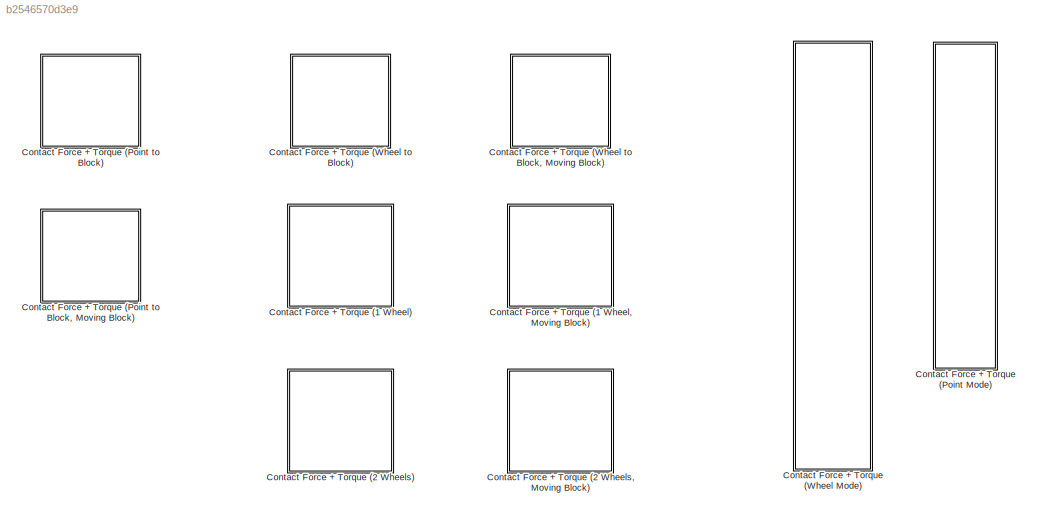
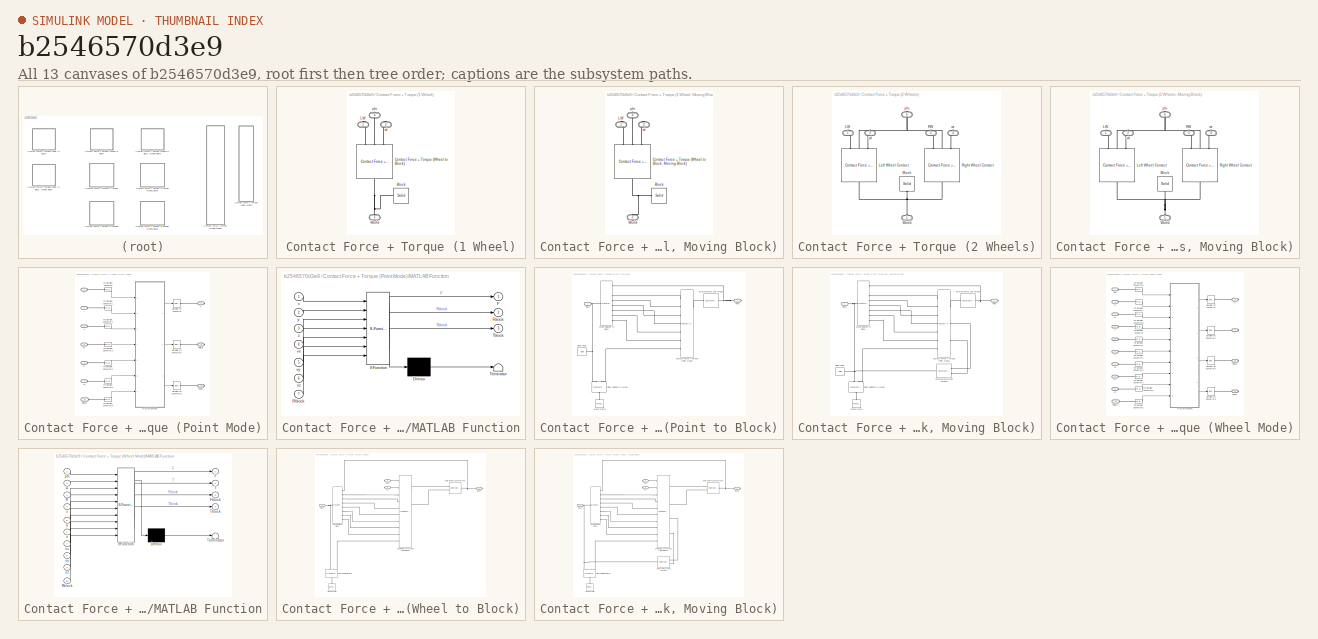
[diagram: thumbnail index - all 13 canvases of the model, root first then tree order]
MODEL slx_b2546570d3e9
KIND library
BLOCK [SubSystem] Contact Force + Torque (1 Wheel)
  Ports = [0, 0, 0, 0, 0, 1, 3]
  RequestExecContextInheritance = off
BLOCK [Reference] Contact Force + Torque (1 Wheel)/Block  REF=sm_lib/Body Elements/Solid
  BlockFunction = simmechanics.library.body_elements.solid
  BrickDimensionUnits = m
  BrickDimensions = [xBlock yBlock zBlock]
  CenterOfMass = [0 0 0]
  CenterOfMassUnits = m
  ClassName = Solid
  CylinderLength = 1
  CylinderLengthUnits = m
  CylinderRadius = 1
  CylinderRadiusUnits = m
  Density = 1000
  DensityBased = off
  DensityUnits = kg/(m^3)
  EllipsoidRadii = [1 1 1]
  EllipsoidRadiiUnits = m
  ExtGeomFileType = STL
  ExtGeomFileUnits = m
  ExtrusionCrossSection = [1 1; -1 1; -1 -1; 1 -1]
  ExtrusionCrossSectionUnits = m
  ExtrusionLength = 1
  ExtrusionLengthUnits = m
  GeometryShape = Brick
  GraphicAmbientColor = [0.15 0.15 0.15 1.0]
  GraphicDiffuseColor = blockColor
  GraphicEmissiveColor = [0.0 0.0 0.0 1.0]
  GraphicOpacity = 1.0
  GraphicShininess = 75
  GraphicSpecularColor = [0.5 0.5 0.5 1.0]
  GraphicType = FromGeometry
  GraphicVisPropType = SimpleVisualProperties
  InertiaType = CalculateFromGeometry
  MarkerShape = Sphere
  MarkerSize = 10
  MarkerSizeUnits = m
  Mass = mBlock
  MassUnits = kg
  MomentsOfInertia = [1 1 1]
  MomentsOfInertiaUnits = kg*m^2
  PolygonNumSides = 3
  PolygonOuterRadius = 1
  PolygonOuterRadiusUnits = m
  Ports = [0, 0, 0, 0, 0, 0, 1]
  ProductsOfInertia = [0 0 0]
  ProductsOfInertiaUnits = kg*m^2
  RectangleSize = [1 1]
  RectangleSizeUnits = m
  RevolutionAngle = 180
  RevolutionAngleUnits = deg
  RevolutionCrossSection = [1 1; 1 -1; 2 -1; 2 1]
  RevolutionCrossSectionUnits = m
  RevolutionExtent = Full
  SourceBlock = sm_lib/Body Elements/Solid
  SourceType = Solid
  SphereRadius = 1
  SphereRadiusUnits = m
BLOCK [Reference] Contact Force + Torque (1 Wheel)/Contact Force + Torque (Wheel to Block)  REF=contactlibV2/Contact Force + Torque
(Wheel to Block)
  Ports = [0, 0, 0, 0, 0, 1, 3]
  SourceBlock = contactlibV2/Contact Force + Torque\n(Wheel to Block)
  b = b
  b2 = b2
  blockColor = blockColor
  k = k
  mBlock = mBlock
  rWheel = rWheel
  xBlock = xBlock
  yBlock = yBlock
  zBlock = zBlock
BLOCK [PMIOPort] Contact Force + Torque (1 Wheel)/LW
  Port = 1
  Side = Right
BLOCK [PMIOPort] Contact Force + Torque (1 Wheel)/World
  Port = 3
  Side = Left
BLOCK [PMIOPort] Contact Force + Torque (1 Wheel)/phi
  Port = 4
  Side = Right
BLOCK [PMIOPort] Contact Force + Torque (1 Wheel)/wl
  Port = 2
  Side = Right
BLOCK [SubSystem] Contact Force + Torque (1 Wheel, Moving Block)
  Ports = [0, 0, 0, 0, 0, 1, 3]
  RequestExecContextInheritance = off
BLOCK [Reference] Contact Force + Torque (1 Wheel, Moving Block)/Block  REF=sm_lib/Body Elements/Solid
  BlockFunction = simmechanics.library.body_elements.solid
  BrickDimensionUnits = m
  BrickDimensions = [xBlock yBlock zBlock]
  CenterOfMass = [0 0 0]
  CenterOfMassUnits = m
  ClassName = Solid
  CylinderLength = 1
  CylinderLengthUnits = m
  CylinderRadius = 1
  CylinderRadiusUnits = m
  Density = 1000
  DensityBased = off
  DensityUnits = kg/(m^3)
  EllipsoidRadii = [1 1 1]
  EllipsoidRadiiUnits = m
  ExtGeomFileType = STL
  ExtGeomFileUnits = m
  ExtrusionCrossSection = [1 1; -1 1; -1 -1; 1 -1]
  ExtrusionCrossSectionUnits = m
  ExtrusionLength = 1
  ExtrusionLengthUnits = m
  GeometryShape = Brick
  GraphicAmbientColor = [0.15 0.15 0.15 1.0]
  GraphicDiffuseColor = blockColor
  GraphicEmissiveColor = [0.0 0.0 0.0 1.0]
  GraphicOpacity = 1.0
  GraphicShininess = 75
  GraphicSpecularColor = [0.5 0.5 0.5 1.0]
  GraphicType = FromGeometry
  GraphicVisPropType = SimpleVisualProperties
  InertiaType = CalculateFromGeometry
  MarkerShape = Sphere
  MarkerSize = 10
  MarkerSizeUnits = m
  Mass = mBlock
  MassUnits = kg
  MomentsOfInertia = [1 1 1]
  MomentsOfInertiaUnits = kg*m^2
  PolygonNumSides = 3
  PolygonOuterRadius = 1
  PolygonOuterRadiusUnits = m
  Ports = [0, 0, 0, 0, 0, 0, 1]
  ProductsOfInertia = [0 0 0]
  ProductsOfInertiaUnits = kg*m^2
  RectangleSize = [1 1]
  RectangleSizeUnits = m
  RevolutionAngle = 180
  RevolutionAngleUnits = deg
  RevolutionCrossSection = [1 1; 1 -1; 2 -1; 2 1]
  RevolutionCrossSectionUnits = m
  RevolutionExtent = Full
  SourceBlock = sm_lib/Body Elements/Solid
  SourceType = Solid
  SphereRadius = 1
  SphereRadiusUnits = m
BLOCK [Reference] Contact Force + Torque (1 Wheel, Moving Block)/Contact Force + Torque (Wheel to Block, Moving Block)  REF=contactlibV2/Contact Force + Torque
(Wheel to Block, Moving Block)
  Ports = [0, 0, 0, 0, 0, 1, 3]
  SourceBlock = contactlibV2/Contact Force + Torque\n(Wheel to Block, Moving Block)
  b = b
  b2 = b2
  blockColor = blockColor
  k = k
  mBlock = mBlock
  rWheel = rWheel
  xBlock = xBlock
  yBlock = yBlock
  zBlock = zBlock
BLOCK [PMIOPort] Contact Force + Torque (1 Wheel, Moving Block)/LW
  Port = 1
  Side = Right
BLOCK [PMIOPort] Contact Force + Torque (1 Wheel, Moving Block)/World
  Port = 3
  Side = Left
BLOCK [PMIOPort] Contact Force + Torque (1 Wheel, Moving Block)/phi
  Port = 4
  Side = Right
BLOCK [PMIOPort] Contact Force + Torque (1 Wheel, Moving Block)/wl
  Port = 2
  Side = Right
BLOCK [SubSystem] Contact Force + Torque (2 Wheels)
  Ports = [0, 0, 0, 0, 0, 1, 5]
  RequestExecContextInheritance = off
BLOCK [Reference] Contact Force + Torque (2 Wheels)/Block  REF=sm_lib/Body Elements/Solid
  BlockFunction = simmechanics.library.body_elements.solid
  BrickDimensionUnits = m
  BrickDimensions = [xBlock yBlock zBlock]
  CenterOfMass = [0 0 0]
  CenterOfMassUnits = m
  ClassName = Solid
  CylinderLength = 1
  CylinderLengthUnits = m
  CylinderRadius = 1
  CylinderRadiusUnits = m
  Density = 1000
  DensityBased = off
  DensityUnits = kg/(m^3)
  EllipsoidRadii = [1 1 1]
  EllipsoidRadiiUnits = m
  ExtGeomFileType = STL
  ExtGeomFileUnits = m
  ExtrusionCrossSection = [1 1; -1 1; -1 -1; 1 -1]
  ExtrusionCrossSectionUnits = m
  ExtrusionLength = 1
  ExtrusionLengthUnits = m
  GeometryShape = Brick
  GraphicAmbientColor = [0.15 0.15 0.15 1.0]
  GraphicDiffuseColor = blockColor
  GraphicEmissiveColor = [0.0 0.0 0.0 1.0]
  GraphicOpacity = 1.0
  GraphicShininess = 75
  GraphicSpecularColor = [0.5 0.5 0.5 1.0]
  GraphicType = FromGeometry
  GraphicVisPropType = SimpleVisualProperties
  InertiaType = CalculateFromGeometry
  MarkerShape = Sphere
  MarkerSize = 10
  MarkerSizeUnits = m
  Mass = mBlock
  MassUnits = kg
  MomentsOfInertia = [1 1 1]
  MomentsOfInertiaUnits = kg*m^2
  PolygonNumSides = 3
  PolygonOuterRadius = 1
  PolygonOuterRadiusUnits = m
  Ports = [0, 0, 0, 0, 0, 0, 1]
  ProductsOfInertia = [0 0 0]
  ProductsOfInertiaUnits = kg*m^2
  RectangleSize = [1 1]
  RectangleSizeUnits = m
  RevolutionAngle = 180
  RevolutionAngleUnits = deg
  RevolutionCrossSection = [1 1; 1 -1; 2 -1; 2 1]
  RevolutionCrossSectionUnits = m
  RevolutionExtent = Full
  SourceBlock = sm_lib/Body Elements/Solid
  SourceType = Solid
  SphereRadius = 1
  SphereRadiusUnits = m
BLOCK [PMIOPort] Contact Force + Torque (2 Wheels)/LW
  Port = 1
  Side = Right
BLOCK [Reference] Contact Force + Torque (2 Wheels)/Left Wheel Contact  REF=contactlibV2/Contact Force + Torque
(Wheel to Block)
  Ports = [0, 0, 0, 0, 0, 1, 3]
  SourceBlock = contactlibV2/Contact Force + Torque\n(Wheel to Block)
  b = b
  b2 = b2
  blockColor = blockColor
  k = k
  mBlock = mBlock
  rWheel = rWheel
  xBlock = xBlock
  yBlock = yBlock
  zBlock = zBlock
BLOCK [PMIOPort] Contact Force + Torque (2 Wheels)/RW
  Port = 3
  Side = Right
BLOCK [Reference] Contact Force + Torque (2 Wheels)/Right Wheel Contact  REF=contactlibV2/Contact Force + Torque
(Wheel to Block)
  Ports = [0, 0, 0, 0, 0, 1, 3]
  SourceBlock = contactlibV2/Contact Force + Torque\n(Wheel to Block)
  b = b
  b2 = b2
  blockColor = blockColor
  k = k
  mBlock = mBlock
  rWheel = rWheel
  xBlock = xBlock
  yBlock = yBlock
  zBlock = zBlock
BLOCK [PMIOPort] Contact Force + Torque (2 Wheels)/World
  Port = 5
  Side = Left
BLOCK [PMIOPort] Contact Force + Torque (2 Wheels)/phi
  Port = 6
  Side = Right
BLOCK [PMIOPort] Contact Force + Torque (2 Wheels)/wl
  Port = 2
  Side = Right
BLOCK [PMIOPort] Contact Force + Torque (2 Wheels)/wr
  Port = 4
  Side = Right
BLOCK [SubSystem] Contact Force + Torque (2 Wheels, Moving Block)
  Ports = [0, 0, 0, 0, 0, 1, 5]
  RequestExecContextInheritance = off
BLOCK [Reference] Contact Force + Torque (2 Wheels, Moving Block)/Block  REF=sm_lib/Body Elements/Solid
  BlockFunction = simmechanics.library.body_elements.solid
  BrickDimensionUnits = m
  BrickDimensions = [xBlock yBlock zBlock]
  CenterOfMass = [0 0 0]
  CenterOfMassUnits = m
  ClassName = Solid
  CylinderLength = 1
  CylinderLengthUnits = m
  CylinderRadius = 1
  CylinderRadiusUnits = m
  Density = 1000
  DensityBased = off
  DensityUnits = kg/(m^3)
  EllipsoidRadii = [1 1 1]
  EllipsoidRadiiUnits = m
  ExtGeomFileType = STL
  ExtGeomFileUnits = m
  ExtrusionCrossSection = [1 1; -1 1; -1 -1; 1 -1]
  ExtrusionCrossSectionUnits = m
  ExtrusionLength = 1
  ExtrusionLengthUnits = m
  GeometryShape = Brick
  GraphicAmbientColor = [0.15 0.15 0.15 1.0]
  GraphicDiffuseColor = blockColor
  GraphicEmissiveColor = [0.0 0.0 0.0 1.0]
  GraphicOpacity = 1.0
  GraphicShininess = 75
  GraphicSpecularColor = [0.5 0.5 0.5 1.0]
  GraphicType = FromGeometry
  GraphicVisPropType = SimpleVisualProperties
  InertiaType = CalculateFromGeometry
  MarkerShape = Sphere
  MarkerSize = 10
  MarkerSizeUnits = m
  Mass = mBlock
  MassUnits = kg
  MomentsOfInertia = [1 1 1]
  MomentsOfInertiaUnits = kg*m^2
  PolygonNumSides = 3
  PolygonOuterRadius = 1
  PolygonOuterRadiusUnits = m
  Ports = [0, 0, 0, 0, 0, 0, 1]
  ProductsOfInertia = [0 0 0]
  ProductsOfInertiaUnits = kg*m^2
  RectangleSize = [1 1]
  RectangleSizeUnits = m
  RevolutionAngle = 180
  RevolutionAngleUnits = deg
  RevolutionCrossSection = [1 1; 1 -1; 2 -1; 2 1]
  RevolutionCrossSectionUnits = m
  RevolutionExtent = Full
  SourceBlock = sm_lib/Body Elements/Solid
  SourceType = Solid
  SphereRadius = 1
  SphereRadiusUnits = m
BLOCK [PMIOPort] Contact Force + Torque (2 Wheels, Moving Block)/LW
  Port = 1
  Side = Right
BLOCK [Reference] Contact Force + Torque (2 Wheels, Moving Block)/Left Wheel Contact  REF=contactlibV2/Contact Force + Torque
(Wheel to Block, Moving Block)
  Ports = [0, 0, 0, 0, 0, 1, 3]
  SourceBlock = contactlibV2/Contact Force + Torque\n(Wheel to Block, Moving Block)
  b = b
  b2 = b2
  blockColor = blockColor
  k = k
  mBlock = mBlock
  rWheel = rWheel
  xBlock = xBlock
  yBlock = yBlock
  zBlock = zBlock
BLOCK [PMIOPort] Contact Force + Torque (2 Wheels, Moving Block)/RW
  Port = 3
  Side = Right
BLOCK [Reference] Contact Force + Torque (2 Wheels, Moving Block)/Right Wheel Contact  REF=contactlibV2/Contact Force + Torque
(Wheel to Block, Moving Block)
  Ports = [0, 0, 0, 0, 0, 1, 3]
  SourceBlock = contactlibV2/Contact Force + Torque\n(Wheel to Block, Moving Block)
  b = b
  b2 = b2
  blockColor = blockColor
  k = k
  mBlock = mBlock
  rWheel = rWheel
  xBlock = xBlock
  yBlock = yBlock
  zBlock = zBlock
BLOCK [PMIOPort] Contact Force + Torque (2 Wheels, Moving Block)/World
  Port = 5
  Side = Left
BLOCK [PMIOPort] Contact Force + Torque (2 Wheels, Moving Block)/phi
  Port = 6
  Side = Right
BLOCK [PMIOPort] Contact Force + Torque (2 Wheels, Moving Block)/wl
  Port = 2
  Side = Right
BLOCK [PMIOPort] Contact Force + Torque (2 Wheels, Moving Block)/wr
  Port = 4
  Side = Right
BLOCK [SubSystem] Contact Force + Torque (Point Mode)
  Ports = [0, 0, 0, 0, 0, 7, 3]
  RequestExecContextInheritance = off
BLOCK [PMIOPort] Contact Force + Torque (Point Mode)/F
  Port = 1
  Side = Right
BLOCK [PMIOPort] Contact Force + Torque (Point Mode)/Fblock
  Port = 9
  Side = Right
BLOCK [SubSystem] Contact Force + Torque (Point Mode)/MATLAB Function
  ErrorFcn = Stateflow.Translate.translate
  PermitHierarchicalResolution = ExplicitOnly
  Ports = [7, 3]
  RequestExecContextInheritance = off
  SFBlockType = MATLAB Function
  TreatAsAtomicUnit = on
BLOCK [Demux] Contact Force + Torque (Point Mode)/MATLAB Function/ Demux 
  Outputs = 1
  Ports = [1, 1]
BLOCK [S-Function] Contact Force + Torque (Point Mode)/MATLAB Function/ SFunction 
  EnableBusSupport = off
  FunctionName = sf_sfun
  Parameters = b,b2,k,xBlock,yBlock,zBlock
  PortCounts = [7 4]
  Ports = [7, 4]
  Tag = Stateflow S-Function contactlibV2 2
BLOCK [Terminator] Contact Force + Torque (Point Mode)/MATLAB Function/ Terminator 
BLOCK [Outport] Contact Force + Torque (Point Mode)/MATLAB Function/F
  IconDisplay = Port number
BLOCK [Outport] Contact Force + Torque (Point Mode)/MATLAB Function/Fblock
  IconDisplay = Port number
  Port = 2
BLOCK [Inport] Contact Force + Torque (Point Mode)/MATLAB Function/Rblock
  IconDisplay = Port number
  Port = 7
BLOCK [Outport] Contact Force + Torque (Point Mode)/MATLAB Function/Tblock
  IconDisplay = Port number
  Port = 3
BLOCK [Inport] Contact Force + Torque (Point Mode)/MATLAB Function/vx
  IconDisplay = Port number
  Port = 4
BLOCK [Inport] Contact Force + Torque (Point Mode)/MATLAB Function/vy
  IconDisplay = Port number
  Port = 5
BLOCK [Inport] Contact Force + Torque (Point Mode)/MATLAB Function/vz
  IconDisplay = Port number
  Port = 6
BLOCK [Inport] Contact Force + Torque (Point Mode)/MATLAB Function/x
  IconDisplay = Port number
BLOCK [Inport] Contact Force + Torque (Point Mode)/MATLAB Function/y
  IconDisplay = Port number
  Port = 2
BLOCK [Inport] Contact Force + Torque (Point Mode)/MATLAB Function/z
  IconDisplay = Port number
  Port = 3
BLOCK [Reference] Contact Force + Torque (Point Mode)/PS-Simulink Converter  REF=nesl_utility/PS-Simulink
Converter
  AffineConversion = off
  Frequencies = []
  LeftPortType = input
  PhysicalDomain = network_engine_domain
  Ports = [0, 1, 0, 0, 0, 1]
  PseudoPeriodic = off
  RightPortType = output
  SourceBlock = nesl_utility/PS-Simulink\nConverter
  SourceType = PS-Simulink\nConverter
  SubClassName = ps_output
  Unit = 1
BLOCK [Reference] Contact Force + Torque (Point Mode)/PS-Simulink Converter1  REF=nesl_utility/PS-Simulink
Converter
  AffineConversion = off
  Frequencies = []
  LeftPortType = input
  PhysicalDomain = network_engine_domain
  Ports = [0, 1, 0, 0, 0, 1]
  PseudoPeriodic = off
  RightPortType = output
  SourceBlock = nesl_utility/PS-Simulink\nConverter
  SourceType = PS-Simulink\nConverter
  SubClassName = ps_output
  Unit = 1
BLOCK [Reference] Contact Force + Torque (Point Mode)/PS-Simulink Converter2  REF=nesl_utility/PS-Simulink
Converter
  AffineConversion = off
  Frequencies = []
  LeftPortType = input
  PhysicalDomain = network_engine_domain
  Ports = [0, 1, 0, 0, 0, 1]
  PseudoPeriodic = off
  RightPortType = output
  SourceBlock = nesl_utility/PS-Simulink\nConverter
  SourceType = PS-Simulink\nConverter
  SubClassName = ps_output
  Unit = 1
BLOCK [Reference] Contact Force + Torque (Point Mode)/PS-Simulink Converter3  REF=nesl_utility/PS-Simulink
Converter
  AffineConversion = off
  Frequencies = []
  LeftPortType = input
  PhysicalDomain = network_engine_domain
  Ports = [0, 1, 0, 0, 0, 1]
  PseudoPeriodic = off
  RightPortType = output
  SourceBlock = nesl_utility/PS-Simulink\nConverter
  SourceType = PS-Simulink\nConverter
  SubClassName = ps_output
  Unit = 1
BLOCK [Reference] Contact Force + Torque (Point Mode)/PS-Simulink Converter4  REF=nesl_utility/PS-Simulink
Converter
  AffineConversion = off
  Frequencies = []
  LeftPortType = input
  PhysicalDomain = network_engine_domain
  Ports = [0, 1, 0, 0, 0, 1]
  PseudoPeriodic = off
  RightPortType = output
  SourceBlock = nesl_utility/PS-Simulink\nConverter
  SourceType = PS-Simulink\nConverter
  SubClassName = ps_output
  Unit = 1
BLOCK [Reference] Contact Force + Torque (Point Mode)/PS-Simulink Converter5  REF=nesl_utility/PS-Simulink
Converter
  AffineConversion = off
  Frequencies = []
  LeftPortType = input
  PhysicalDomain = network_engine_domain
  Ports = [0, 1, 0, 0, 0, 1]
  PseudoPeriodic = off
  RightPortType = output
  SourceBlock = nesl_utility/PS-Simulink\nConverter
  SourceType = PS-Simulink\nConverter
  SubClassName = ps_output
  Unit = 1
BLOCK [Reference] Contact Force + Torque (Point Mode)/PS-Simulink Converter6  REF=nesl_utility/PS-Simulink
Converter
  AffineConversion = off
  Frequencies = []
  LeftPortType = input
  PhysicalDomain = network_engine_domain
  Ports = [0, 1, 0, 0, 0, 1]
  PseudoPeriodic = off
  RightPortType = output
  SourceBlock = nesl_utility/PS-Simulink\nConverter
  SourceType = PS-Simulink\nConverter
  SubClassName = ps_output
  Unit = 1
BLOCK [PMIOPort] Contact Force + Torque (Point Mode)/Rblock
  Port = 8
  Side = Left
BLOCK [Reference] Contact Force + Torque (Point Mode)/Simulink-PS Converter  REF=nesl_utility/Simulink-PS
Converter
  AffineConversion = off
  Frequencies = []
  InputFilterTimeConstant = 0.001
  InputFiltering = off
  LeftPortType = input
  NoiseDistribution = none
  NoiseParameters = []
  PhysicalDomain = network_engine_domain
  Ports = [1, 0, 0, 0, 0, 0, 1]
  PseudoPeriodic = off
  RightPortType = output
  SimscapeFilterOrder = 1
  SourceBlock = nesl_utility/Simulink-PS\nConverter
  SourceType = Simulink-PS\nConverter
  SubClassName = ps_input
  UdotUserProvided = 1
  Unit = 1
BLOCK [Reference] Contact Force + Torque (Point Mode)/Simulink-PS Converter2  REF=nesl_utility/Simulink-PS
Converter
  AffineConversion = off
  Frequencies = []
  InputFilterTimeConstant = 0.001
  InputFiltering = off
  LeftPortType = input
  NoiseDistribution = none
  NoiseParameters = []
  PhysicalDomain = network_engine_domain
  Ports = [1, 0, 0, 0, 0, 0, 1]
  PseudoPeriodic = off
  RightPortType = output
  SimscapeFilterOrder = 1
  SourceBlock = nesl_utility/Simulink-PS\nConverter
  SourceType = Simulink-PS\nConverter
  SubClassName = ps_input
  UdotUserProvided = 1
  Unit = 1
BLOCK [Reference] Contact Force + Torque (Point Mode)/Simulink-PS Converter3  REF=nesl_utility/Simulink-PS
Converter
  AffineConversion = off
  Frequencies = []
  InputFilterTimeConstant = 0.001
  InputFiltering = off
  LeftPortType = input
  NoiseDistribution = none
  NoiseParameters = []
  PhysicalDomain = network_engine_domain
  Ports = [1, 0, 0, 0, 0, 0, 1]
  PseudoPeriodic = off
  RightPortType = output
  SimscapeFilterOrder = 1
  SourceBlock = nesl_utility/Simulink-PS\nConverter
  SourceType = Simulink-PS\nConverter
  SubClassName = ps_input
  UdotUserProvided = 1
  Unit = 1
BLOCK [PMIOPort] Contact Force + Torque (Point Mode)/Tblock
  Port = 10
  Side = Right
BLOCK [PMIOPort] Contact Force + Torque (Point Mode)/vx
  Port = 5
  Side = Left
BLOCK [PMIOPort] Contact Force + Torque (Point Mode)/vy
  Port = 6
  Side = Left
BLOCK [PMIOPort] Contact Force + Torque (Point Mode)/vz
  Port = 7
  Side = Left
BLOCK [PMIOPort] Contact Force + Torque (Point Mode)/x
  Port = 2
  Side = Left
BLOCK [PMIOPort] Contact Force + Torque (Point Mode)/y
  Port = 3
  Side = Left
BLOCK [PMIOPort] Contact Force + Torque (Point Mode)/z
  Port = 4
  Side = Left
BLOCK [SubSystem] Contact Force + Torque (Point to Block)
  Ports = [0, 0, 0, 0, 0, 1, 1]
  RequestExecContextInheritance = off
BLOCK [PMIOPort] Contact Force + Torque (Point to Block)/Block
  Port = 2
  Side = Left
BLOCK [Reference] Contact Force + Torque (Point to Block)/Block Body  REF=sm_lib/Body Elements/Solid
  BlockFunction = simmechanics.library.body_elements.solid
  BrickDimensionUnits = m
  BrickDimensions = [xBlock yBlock zBlock]
  CenterOfMass = [0 0 0]
  CenterOfMassUnits = m
  ClassName = Solid
  CylinderLength = 1
  CylinderLengthUnits = m
  CylinderRadius = 1
  CylinderRadiusUnits = m
  Density = 1000
  DensityBased = off
  DensityUnits = kg/(m^3)
  EllipsoidRadii = [1 1 1]
  EllipsoidRadiiUnits = m
  ExtGeomFileType = STL
  ExtGeomFileUnits = m
  ExtrusionCrossSection = [1 1; -1 1; -1 -1; 1 -1]
  ExtrusionCrossSectionUnits = m
  ExtrusionLength = 1
  ExtrusionLengthUnits = m
  GeometryShape = Brick
  GraphicAmbientColor = [0.15 0.15 0.15 1.0]
  GraphicDiffuseColor = blockColor
  GraphicEmissiveColor = [0.0 0.0 0.0 1.0]
  GraphicOpacity = 1.0
  GraphicShininess = 75
  GraphicSpecularColor = [0.5 0.5 0.5 1.0]
  GraphicType = FromGeometry
  GraphicVisPropType = SimpleVisualProperties
  InertiaType = CalculateFromGeometry
  MarkerShape = Sphere
  MarkerSize = 10
  MarkerSizeUnits = m
  Mass = mBlock
  MassUnits = kg
  MomentsOfInertia = [1 1 1]
  MomentsOfInertiaUnits = kg*m^2
  PolygonNumSides = 3
  PolygonOuterRadius = 1
  PolygonOuterRadiusUnits = m
  Ports = [0, 0, 0, 0, 0, 0, 1]
  ProductsOfInertia = [0 0 0]
  ProductsOfInertiaUnits = kg*m^2
  RectangleSize = [1 1]
  RectangleSizeUnits = m
  RevolutionAngle = 180
  RevolutionAngleUnits = deg
  RevolutionCrossSection = [1 1; 1 -1; 2 -1; 2 1]
  RevolutionCrossSectionUnits = m
  RevolutionExtent = Full
  SourceBlock = sm_lib/Body Elements/Solid
  SourceType = Solid
  SphereRadius = 1
  SphereRadiusUnits = m
BLOCK [Reference] Contact Force + Torque (Point to Block)/Block Relative to World  REF=sm_lib/Frames and
Transforms/Transform
Sensor
  BlockFunction = simmechanics.library.frames_transforms.transform_sensor
  ClassName = TransformSensor
  MeasurementFrame = Base
  Ports = [0, 0, 0, 0, 0, 1, 2]
  SenseAlpha1 = off
  SenseAlpha2 = off
  SenseAlpha3 = off
  SenseAlphaX = off
  SenseAlphaY = off
  SenseAlphaZ = off
  SenseAngle = off
  SenseAngle1 = off
  SenseAngle2 = off
  SenseAngle3 = off
  SenseAxis = off
  SenseAzim = off
  SenseAzimDDot = off
  SenseAzimDot = off
  SenseDist = off
  SenseDistDDot = off
  SenseDistDot = off
  SenseInc = off
  SenseIncDDot = off
  SenseIncDot = off
  SenseOmega1 = off
  SenseOmega2 = off
  SenseOmega3 = off
  SenseOmegaX = off
  SenseOmegaY = off
  SenseOmegaZ = off
  SenseQ = off
  SenseQDDot = off
  SenseQDot = off
  SenseR = on
  SenseRDDot = off
  SenseRDot = off
  SenseRad = off
  SenseRadDDot = off
  SenseRadDot = off
  SenseX = off
  SenseXDDot = off
  SenseXDot = off
  SenseY = off
  SenseYDDot = off
  SenseYDot = off
  SenseZ = off
  SenseZDDot = off
  SenseZDot = off
  SourceBlock = sm_lib/Frames and\nTransforms/Transform\nSensor
  SourceType = Transform\nSensor
BLOCK [Reference] Contact Force + Torque (Point to Block)/Contact Force + Torque (Point Mode)  REF=contactlibV2/Contact Force + Torque
(Point Mode)
  Ports = [0, 0, 0, 0, 0, 7, 3]
  SourceBlock = contactlibV2/Contact Force + Torque\n(Point Mode)
  SourceType = SubSystem
BLOCK [Reference] Contact Force + Torque (Point to Block)/External Force and Torque  REF=sm_lib/Forces and
Torques/External Force
and Torque
  BlockFunction = simmechanics.library.forces_torques.external_force_torque
  ClassName = ExternalForceTorque
  EnableForce = on
  EnableForceX = off
  EnableForceY = off
  EnableForceZ = off
  EnableTorque = off
  EnableTorqueX = off
  EnableTorqueY = off
  EnableTorqueZ = off
  ForceResolutionFrame = World
  Ports = [0, 0, 0, 0, 0, 1, 1]
  SourceBlock = sm_lib/Forces and\nTorques/External Force\nand Torque
  SourceType = External Force\nand Torque
  TorqueResolutionFrame = World
BLOCK [PMIOPort] Contact Force + Torque (Point to Block)/Point
  Port = 1
  Side = Right
BLOCK [Reference] Contact Force + Torque (Point to Block)/Wheel Relative to Block  REF=sm_lib/Frames and
Transforms/Transform
Sensor
  BlockFunction = simmechanics.library.frames_transforms.transform_sensor
  ClassName = TransformSensor
  MeasurementFrame = Base
  Ports = [0, 0, 0, 0, 0, 1, 8]
  SenseAlpha1 = off
  SenseAlpha2 = off
  SenseAlpha3 = off
  SenseAlphaX = off
  SenseAlphaY = off
  SenseAlphaZ = off
  SenseAngle = off
  SenseAngle1 = off
  SenseAngle2 = off
  SenseAngle3 = off
  SenseAxis = off
  SenseAzim = off
  SenseAzimDDot = off
  SenseAzimDot = off
  SenseDist = off
  SenseDistDDot = off
  SenseDistDot = off
  SenseInc = off
  SenseIncDDot = off
  SenseIncDot = off
  SenseOmega1 = off
  SenseOmega2 = off
  SenseOmega3 = off
  SenseOmegaX = off
  SenseOmegaY = off
  SenseOmegaZ = off
  SenseQ = off
  SenseQDDot = off
  SenseQDot = off
  SenseR = on
  SenseRDDot = off
  SenseRDot = off
  SenseRad = off
  SenseRadDDot = off
  SenseRadDot = off
  SenseX = on
  SenseXDDot = off
  SenseXDot = on
  SenseY = on
  SenseYDDot = off
  SenseYDot = on
  SenseZ = on
  SenseZDDot = off
  SenseZDot = on
  SourceBlock = sm_lib/Frames and\nTransforms/Transform\nSensor
  SourceType = Transform\nSensor
BLOCK [Reference] Contact Force + Torque (Point to Block)/World Frame  REF=sm_lib/Frames and
Transforms/World Frame
  BlockFunction = simmechanics.library.frames_transforms.world_frame
  ClassName = WorldFrame
  Ports = [0, 0, 0, 0, 0, 0, 1]
  SourceBlock = sm_lib/Frames and\nTransforms/World Frame
  SourceType = World Frame
BLOCK [SubSystem] Contact Force + Torque (Point to Block, Moving Block)
  Ports = [0, 0, 0, 0, 0, 1, 1]
  RequestExecContextInheritance = off
BLOCK [PMIOPort] Contact Force + Torque (Point to Block, Moving Block)/Block
  Port = 2
  Side = Left
BLOCK [Reference] Contact Force + Torque (Point to Block, Moving Block)/Block Body  REF=sm_lib/Body Elements/Solid
  BlockFunction = simmechanics.library.body_elements.solid
  BrickDimensionUnits = m
  BrickDimensions = [xBlock yBlock zBlock]
  CenterOfMass = [0 0 0]
  CenterOfMassUnits = m
  ClassName = Solid
  CylinderLength = 1
  CylinderLengthUnits = m
  CylinderRadius = 1
  CylinderRadiusUnits = m
  Density = 1000
  DensityBased = off
  DensityUnits = kg/(m^3)
  EllipsoidRadii = [1 1 1]
  EllipsoidRadiiUnits = m
  ExtGeomFileType = STL
  ExtGeomFileUnits = m
  ExtrusionCrossSection = [1 1; -1 1; -1 -1; 1 -1]
  ExtrusionCrossSectionUnits = m
  ExtrusionLength = 1
  ExtrusionLengthUnits = m
  GeometryShape = Brick
  GraphicAmbientColor = [0.15 0.15 0.15 1.0]
  GraphicDiffuseColor = blockColor
  GraphicEmissiveColor = [0.0 0.0 0.0 1.0]
  GraphicOpacity = 1.0
  GraphicShininess = 75
  GraphicSpecularColor = [0.5 0.5 0.5 1.0]
  GraphicType = FromGeometry
  GraphicVisPropType = SimpleVisualProperties
  InertiaType = CalculateFromGeometry
  MarkerShape = Sphere
  MarkerSize = 10
  MarkerSizeUnits = m
  Mass = mBlock
  MassUnits = kg
  MomentsOfInertia = [1 1 1]
  MomentsOfInertiaUnits = kg*m^2
  PolygonNumSides = 3
  PolygonOuterRadius = 1
  PolygonOuterRadiusUnits = m
  Ports = [0, 0, 0, 0, 0, 0, 1]
  ProductsOfInertia = [0 0 0]
  ProductsOfInertiaUnits = kg*m^2
  RectangleSize = [1 1]
  RectangleSizeUnits = m
  RevolutionAngle = 180
  RevolutionAngleUnits = deg
  RevolutionCrossSection = [1 1; 1 -1; 2 -1; 2 1]
  RevolutionCrossSectionUnits = m
  RevolutionExtent = Full
  SourceBlock = sm_lib/Body Elements/Solid
  SourceType = Solid
  SphereRadius = 1
  SphereRadiusUnits = m
BLOCK [Reference] Contact Force + Torque (Point to Block, Moving Block)/Block Relative to World  REF=sm_lib/Frames and
Transforms/Transform
Sensor
  BlockFunction = simmechanics.library.frames_transforms.transform_sensor
  ClassName = TransformSensor
  MeasurementFrame = Base
  Ports = [0, 0, 0, 0, 0, 1, 2]
  SenseAlpha1 = off
  SenseAlpha2 = off
  SenseAlpha3 = off
  SenseAlphaX = off
  SenseAlphaY = off
  SenseAlphaZ = off
  SenseAngle = off
  SenseAngle1 = off
  SenseAngle2 = off
  SenseAngle3 = off
  SenseAxis = off
  SenseAzim = off
  SenseAzimDDot = off
  SenseAzimDot = off
  SenseDist = off
  SenseDistDDot = off
  SenseDistDot = off
  SenseInc = off
  SenseIncDDot = off
  SenseIncDot = off
  SenseOmega1 = off
  SenseOmega2 = off
  SenseOmega3 = off
  SenseOmegaX = off
  SenseOmegaY = off
  SenseOmegaZ = off
  SenseQ = off
  SenseQDDot = off
  SenseQDot = off
  SenseR = on
  SenseRDDot = off
  SenseRDot = off
  SenseRad = off
  SenseRadDDot = off
  SenseRadDot = off
  SenseX = off
  SenseXDDot = off
  SenseXDot = off
  SenseY = off
  SenseYDDot = off
  SenseYDot = off
  SenseZ = off
  SenseZDDot = off
  SenseZDot = off
  SourceBlock = sm_lib/Frames and\nTransforms/Transform\nSensor
  SourceType = Transform\nSensor
BLOCK [Reference] Contact Force + Torque (Point to Block, Moving Block)/Contact Force + Torque (Point Mode)  REF=contactlibV2/Contact Force + Torque
(Point Mode)
  Ports = [0, 0, 0, 0, 0, 7, 3]
  SourceBlock = contactlibV2/Contact Force + Torque\n(Point Mode)
  SourceType = SubSystem
BLOCK [Reference] Contact Force + Torque (Point to Block, Moving Block)/External Force and Torque  REF=sm_lib/Forces and
Torques/External Force
and Torque
  BlockFunction = simmechanics.library.forces_torques.external_force_torque
  ClassName = ExternalForceTorque
  EnableForce = on
  EnableForceX = off
  EnableForceY = off
  EnableForceZ = off
  EnableTorque = off
  EnableTorqueX = off
  EnableTorqueY = off
  EnableTorqueZ = off
  ForceResolutionFrame = World
  Ports = [0, 0, 0, 0, 0, 1, 1]
  SourceBlock = sm_lib/Forces and\nTorques/External Force\nand Torque
  SourceType = External Force\nand Torque
  TorqueResolutionFrame = World
BLOCK [Reference] Contact Force + Torque (Point to Block, Moving Block)/External Force and Torque1  REF=sm_lib/Forces and
Torques/External Force
and Torque
  BlockFunction = simmechanics.library.forces_torques.external_force_torque
  ClassName = ExternalForceTorque
  EnableForce = on
  EnableForceX = off
  EnableForceY = off
  EnableForceZ = off
  EnableTorque = on
  EnableTorqueX = off
  EnableTorqueY = off
  EnableTorqueZ = off
  ForceResolutionFrame = AttachedFrame
  Ports = [0, 0, 0, 0, 0, 2, 1]
  SourceBlock = sm_lib/Forces and\nTorques/External Force\nand Torque
  SourceType = External Force\nand Torque
  TorqueResolutionFrame = AttachedFrame
BLOCK [PMIOPort] Contact Force + Torque (Point to Block, Moving Block)/Point
  Port = 1
  Side = Right
BLOCK [Reference] Contact Force + Torque (Point to Block, Moving Block)/Wheel Relative to Block  REF=sm_lib/Frames and
Transforms/Transform
Sensor
  BlockFunction = simmechanics.library.frames_transforms.transform_sensor
  ClassName = TransformSensor
  MeasurementFrame = Base
  Ports = [0, 0, 0, 0, 0, 1, 8]
  SenseAlpha1 = off
  SenseAlpha2 = off
  SenseAlpha3 = off
  SenseAlphaX = off
  SenseAlphaY = off
  SenseAlphaZ = off
  SenseAngle = off
  SenseAngle1 = off
  SenseAngle2 = off
  SenseAngle3 = off
  SenseAxis = off
  SenseAzim = off
  SenseAzimDDot = off
  SenseAzimDot = off
  SenseDist = off
  SenseDistDDot = off
  SenseDistDot = off
  SenseInc = off
  SenseIncDDot = off
  SenseIncDot = off
  SenseOmega1 = off
  SenseOmega2 = off
  SenseOmega3 = off
  SenseOmegaX = off
  SenseOmegaY = off
  SenseOmegaZ = off
  SenseQ = off
  SenseQDDot = off
  SenseQDot = off
  SenseR = on
  SenseRDDot = off
  SenseRDot = off
  SenseRad = off
  SenseRadDDot = off
  SenseRadDot = off
  SenseX = on
  SenseXDDot = off
  SenseXDot = on
  SenseY = on
  SenseYDDot = off
  SenseYDot = on
  SenseZ = on
  SenseZDDot = off
  SenseZDot = on
  SourceBlock = sm_lib/Frames and\nTransforms/Transform\nSensor
  SourceType = Transform\nSensor
BLOCK [Reference] Contact Force + Torque (Point to Block, Moving Block)/World Frame  REF=sm_lib/Frames and
Transforms/World Frame
  BlockFunction = simmechanics.library.frames_transforms.world_frame
  ClassName = WorldFrame
  Ports = [0, 0, 0, 0, 0, 0, 1]
  SourceBlock = sm_lib/Frames and\nTransforms/World Frame
  SourceType = World Frame
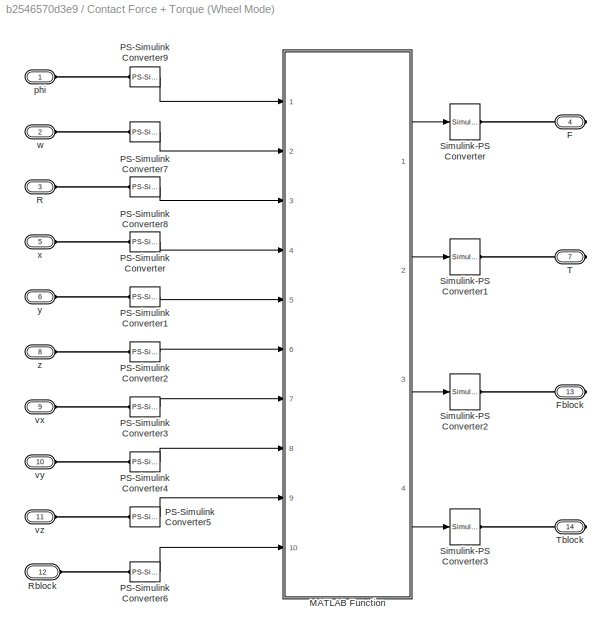
BLOCK [SubSystem] Contact Force + Torque (Wheel Mode)
  Ports = [0, 0, 0, 0, 0, 10, 4]
  RequestExecContextInheritance = off
BLOCK [PMIOPort] Contact Force + Torque (Wheel Mode)/F
  Port = 4
  Side = Right
BLOCK [PMIOPort] Contact Force + Torque (Wheel Mode)/Fblock
  Port = 13
  Side = Right
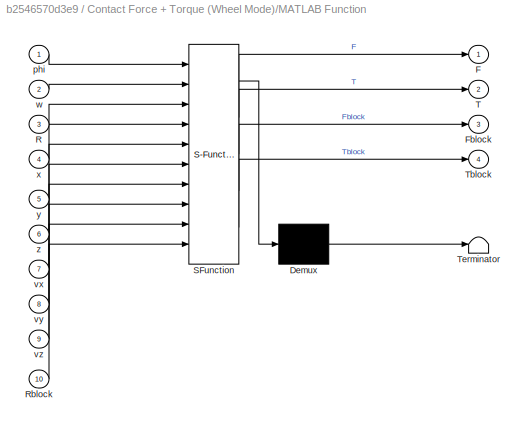
BLOCK [SubSystem] Contact Force + Torque (Wheel Mode)/MATLAB Function
  ErrorFcn = Stateflow.Translate.translate
  PermitHierarchicalResolution = ExplicitOnly
  Ports = [10, 4]
  RequestExecContextInheritance = off
  SFBlockType = MATLAB Function
  TreatAsAtomicUnit = on
BLOCK [Demux] Contact Force + Torque (Wheel Mode)/MATLAB Function/ Demux 
  Outputs = 1
  Ports = [1, 1]
BLOCK [S-Function] Contact Force + Torque (Wheel Mode)/MATLAB Function/ SFunction 
  EnableBusSupport = off
  FunctionName = sf_sfun
  Parameters = b,b2,k,rWheel,xBlock,yBlock,zBlock
  PortCounts = [10 5]
  Ports = [10, 5]
  Tag = Stateflow S-Function contactlibV2 3
BLOCK [Terminator] Contact Force + Torque (Wheel Mode)/MATLAB Function/ Terminator 
BLOCK [Outport] Contact Force + Torque (Wheel Mode)/MATLAB Function/F
  IconDisplay = Port number
BLOCK [Outport] Contact Force + Torque (Wheel Mode)/MATLAB Function/Fblock
  IconDisplay = Port number
  Port = 3
BLOCK [Inport] Contact Force + Torque (Wheel Mode)/MATLAB Function/R
  IconDisplay = Port number
  Port = 3
BLOCK [Inport] Contact Force + Torque (Wheel Mode)/MATLAB Function/Rblock
  IconDisplay = Port number
  Port = 10
BLOCK [Outport] Contact Force + Torque (Wheel Mode)/MATLAB Function/T
  IconDisplay = Port number
  Port = 2
BLOCK [Outport] Contact Force + Torque (Wheel Mode)/MATLAB Function/Tblock
  IconDisplay = Port number
  Port = 4
BLOCK [Inport] Contact Force + Torque (Wheel Mode)/MATLAB Function/phi
  IconDisplay = Port number
BLOCK [Inport] Contact Force + Torque (Wheel Mode)/MATLAB Function/vx
  IconDisplay = Port number
  Port = 7
BLOCK [Inport] Contact Force + Torque (Wheel Mode)/MATLAB Function/vy
  IconDisplay = Port number
  Port = 8
BLOCK [Inport] Contact Force + Torque (Wheel Mode)/MATLAB Function/vz
  IconDisplay = Port number
  Port = 9
BLOCK [Inport] Contact Force + Torque (Wheel Mode)/MATLAB Function/w
  IconDisplay = Port number
  Port = 2
BLOCK [Inport] Contact Force + Torque (Wheel Mode)/MATLAB Function/x
  IconDisplay = Port number
  Port = 4
BLOCK [Inport] Contact Force + Torque (Wheel Mode)/MATLAB Function/y
  IconDisplay = Port number
  Port = 5
BLOCK [Inport] Contact Force + Torque (Wheel Mode)/MATLAB Function/z
  IconDisplay = Port number
  Port = 6
BLOCK [Reference] Contact Force + Torque (Wheel Mode)/PS-Simulink Converter  REF=nesl_utility/PS-Simulink
Converter
  AffineConversion = off
  Frequencies = []
  LeftPortType = input
  PhysicalDomain = network_engine_domain
  Ports = [0, 1, 0, 0, 0, 1]
  PseudoPeriodic = off
  RightPortType = output
  SourceBlock = nesl_utility/PS-Simulink\nConverter
  SourceType = PS-Simulink\nConverter
  SubClassName = ps_output
  Unit = 1
BLOCK [Reference] Contact Force + Torque (Wheel Mode)/PS-Simulink Converter1  REF=nesl_utility/PS-Simulink
Converter
  AffineConversion = off
  Frequencies = []
  LeftPortType = input
  PhysicalDomain = network_engine_domain
  Ports = [0, 1, 0, 0, 0, 1]
  PseudoPeriodic = off
  RightPortType = output
  SourceBlock = nesl_utility/PS-Simulink\nConverter
  SourceType = PS-Simulink\nConverter
  SubClassName = ps_output
  Unit = 1
BLOCK [Reference] Contact Force + Torque (Wheel Mode)/PS-Simulink Converter2  REF=nesl_utility/PS-Simulink
Converter
  AffineConversion = off
  Frequencies = []
  LeftPortType = input
  PhysicalDomain = network_engine_domain
  Ports = [0, 1, 0, 0, 0, 1]
  PseudoPeriodic = off
  RightPortType = output
  SourceBlock = nesl_utility/PS-Simulink\nConverter
  SourceType = PS-Simulink\nConverter
  SubClassName = ps_output
  Unit = 1
BLOCK [Reference] Contact Force + Torque (Wheel Mode)/PS-Simulink Converter3  REF=nesl_utility/PS-Simulink
Converter
  AffineConversion = off
  Frequencies = []
  LeftPortType = input
  PhysicalDomain = network_engine_domain
  Ports = [0, 1, 0, 0, 0, 1]
  PseudoPeriodic = off
  RightPortType = output
  SourceBlock = nesl_utility/PS-Simulink\nConverter
  SourceType = PS-Simulink\nConverter
  SubClassName = ps_output
  Unit = 1
BLOCK [Reference] Contact Force + Torque (Wheel Mode)/PS-Simulink Converter4  REF=nesl_utility/PS-Simulink
Converter
  AffineConversion = off
  Frequencies = []
  LeftPortType = input
  PhysicalDomain = network_engine_domain
  Ports = [0, 1, 0, 0, 0, 1]
  PseudoPeriodic = off
  RightPortType = output
  SourceBlock = nesl_utility/PS-Simulink\nConverter
  SourceType = PS-Simulink\nConverter
  SubClassName = ps_output
  Unit = 1
BLOCK [Reference] Contact Force + Torque (Wheel Mode)/PS-Simulink Converter5  REF=nesl_utility/PS-Simulink
Converter
  AffineConversion = off
  Frequencies = []
  LeftPortType = input
  PhysicalDomain = network_engine_domain
  Ports = [0, 1, 0, 0, 0, 1]
  PseudoPeriodic = off
  RightPortType = output
  SourceBlock = nesl_utility/PS-Simulink\nConverter
  SourceType = PS-Simulink\nConverter
  SubClassName = ps_output
  Unit = 1
BLOCK [Reference] Contact Force + Torque (Wheel Mode)/PS-Simulink Converter6  REF=nesl_utility/PS-Simulink
Converter
  AffineConversion = off
  Frequencies = []
  LeftPortType = input
  PhysicalDomain = network_engine_domain
  Ports = [0, 1, 0, 0, 0, 1]
  PseudoPeriodic = off
  RightPortType = output
  SourceBlock = nesl_utility/PS-Simulink\nConverter
  SourceType = PS-Simulink\nConverter
  SubClassName = ps_output
  Unit = 1
BLOCK [Reference] Contact Force + Torque (Wheel Mode)/PS-Simulink Converter7  REF=nesl_utility/PS-Simulink
Converter
  AffineConversion = off
  Frequencies = []
  LeftPortType = input
  PhysicalDomain = network_engine_domain
  Ports = [0, 1, 0, 0, 0, 1]
  PseudoPeriodic = off
  RightPortType = output
  SourceBlock = nesl_utility/PS-Simulink\nConverter
  SourceType = PS-Simulink\nConverter
  SubClassName = ps_output
  Unit = 1
BLOCK [Reference] Contact Force + Torque (Wheel Mode)/PS-Simulink Converter8  REF=nesl_utility/PS-Simulink
Converter
  AffineConversion = off
  Frequencies = []
  LeftPortType = input
  PhysicalDomain = network_engine_domain
  Ports = [0, 1, 0, 0, 0, 1]
  PseudoPeriodic = off
  RightPortType = output
  SourceBlock = nesl_utility/PS-Simulink\nConverter
  SourceType = PS-Simulink\nConverter
  SubClassName = ps_output
  Unit = 1
BLOCK [Reference] Contact Force + Torque (Wheel Mode)/PS-Simulink Converter9  REF=nesl_utility/PS-Simulink
Converter
  AffineConversion = off
  Frequencies = []
  LeftPortType = input
  PhysicalDomain = network_engine_domain
  Ports = [0, 1, 0, 0, 0, 1]
  PseudoPeriodic = off
  RightPortType = output
  SourceBlock = nesl_utility/PS-Simulink\nConverter
  SourceType = PS-Simulink\nConverter
  SubClassName = ps_output
  Unit = 1
BLOCK [PMIOPort] Contact Force + Torque (Wheel Mode)/R
  Port = 3
  Side = Left
BLOCK [PMIOPort] Contact Force + Torque (Wheel Mode)/Rblock
  Port = 12
  Side = Left
BLOCK [Reference] Contact Force + Torque (Wheel Mode)/Simulink-PS Converter  REF=nesl_utility/Simulink-PS
Converter
  AffineConversion = off
  Frequencies = []
  InputFilterTimeConstant = 0.001
  InputFiltering = off
  LeftPortType = input
  NoiseDistribution = none
  NoiseParameters = []
  PhysicalDomain = network_engine_domain
  Ports = [1, 0, 0, 0, 0, 0, 1]
  PseudoPeriodic = off
  RightPortType = output
  SimscapeFilterOrder = 1
  SourceBlock = nesl_utility/Simulink-PS\nConverter
  SourceType = Simulink-PS\nConverter
  SubClassName = ps_input
  UdotUserProvided = 1
  Unit = 1
BLOCK [Reference] Contact Force + Torque (Wheel Mode)/Simulink-PS Converter1  REF=nesl_utility/Simulink-PS
Converter
  AffineConversion = off
  Frequencies = []
  InputFilterTimeConstant = 0.001
  InputFiltering = off
  LeftPortType = input
  NoiseDistribution = none
  NoiseParameters = []
  PhysicalDomain = network_engine_domain
  Ports = [1, 0, 0, 0, 0, 0, 1]
  PseudoPeriodic = off
  RightPortType = output
  SimscapeFilterOrder = 1
  SourceBlock = nesl_utility/Simulink-PS\nConverter
  SourceType = Simulink-PS\nConverter
  SubClassName = ps_input
  UdotUserProvided = 1
  Unit = 1
BLOCK [Reference] Contact Force + Torque (Wheel Mode)/Simulink-PS Converter2  REF=nesl_utility/Simulink-PS
Converter
  AffineConversion = off
  Frequencies = []
  InputFilterTimeConstant = 0.001
  InputFiltering = off
  LeftPortType = input
  NoiseDistribution = none
  NoiseParameters = []
  PhysicalDomain = network_engine_domain
  Ports = [1, 0, 0, 0, 0, 0, 1]
  PseudoPeriodic = off
  RightPortType = output
  SimscapeFilterOrder = 1
  SourceBlock = nesl_utility/Simulink-PS\nConverter
  SourceType = Simulink-PS\nConverter
  SubClassName = ps_input
  UdotUserProvided = 1
  Unit = 1
BLOCK [Reference] Contact Force + Torque (Wheel Mode)/Simulink-PS Converter3  REF=nesl_utility/Simulink-PS
Converter
  AffineConversion = off
  Frequencies = []
  InputFilterTimeConstant = 0.001
  InputFiltering = off
  LeftPortType = input
  NoiseDistribution = none
  NoiseParameters = []
  PhysicalDomain = network_engine_domain
  Ports = [1, 0, 0, 0, 0, 0, 1]
  PseudoPeriodic = off
  RightPortType = output
  SimscapeFilterOrder = 1
  SourceBlock = nesl_utility/Simulink-PS\nConverter
  SourceType = Simulink-PS\nConverter
  SubClassName = ps_input
  UdotUserProvided = 1
  Unit = 1
BLOCK [PMIOPort] Contact Force + Torque (Wheel Mode)/T
  Port = 7
  Side = Right
BLOCK [PMIOPort] Contact Force + Torque (Wheel Mode)/Tblock
  Port = 14
  Side = Right
BLOCK [PMIOPort] Contact Force + Torque (Wheel Mode)/phi
  Port = 1
  Side = Left
BLOCK [PMIOPort] Contact Force + Torque (Wheel Mode)/vx
  Port = 9
  Side = Left
BLOCK [PMIOPort] Contact Force + Torque (Wheel Mode)/vy
  Port = 10
  Side = Left
BLOCK [PMIOPort] Contact Force + Torque (Wheel Mode)/vz
  Port = 11
  Side = Left
BLOCK [PMIOPort] Contact Force + Torque (Wheel Mode)/w
  Port = 2
  Side = Left
BLOCK [PMIOPort] Contact Force + Torque (Wheel Mode)/x
  Port = 5
  Side = Left
BLOCK [PMIOPort] Contact Force + Torque (Wheel Mode)/y
  Port = 6
  Side = Left
BLOCK [PMIOPort] Contact Force + Torque (Wheel Mode)/z
  Port = 8
  Side = Left
BLOCK [SubSystem] Contact Force + Torque (Wheel to Block)
  Ports = [0, 0, 0, 0, 0, 1, 3]
  RequestExecContextInheritance = off
BLOCK [PMIOPort] Contact Force + Torque (Wheel to Block)/Block
  Port = 2
  Side = Left
BLOCK [Reference] Contact Force + Torque (Wheel to Block)/Block Relative to World  REF=sm_lib/Frames and
Transforms/Transform
Sensor
  BlockFunction = simmechanics.library.frames_transforms.transform_sensor
  ClassName = TransformSensor
  MeasurementFrame = Base
  Ports = [0, 0, 0, 0, 0, 1, 2]
  SenseAlpha1 = off
  SenseAlpha2 = off
  SenseAlpha3 = off
  SenseAlphaX = off
  SenseAlphaY = off
  SenseAlphaZ = off
  SenseAngle = off
  SenseAngle1 = off
  SenseAngle2 = off
  SenseAngle3 = off
  SenseAxis = off
  SenseAzim = off
  SenseAzimDDot = off
  SenseAzimDot = off
  SenseDist = off
  SenseDistDDot = off
  SenseDistDot = off
  SenseInc = off
  SenseIncDDot = off
  SenseIncDot = off
  SenseOmega1 = off
  SenseOmega2 = off
  SenseOmega3 = off
  SenseOmegaX = off
  SenseOmegaY = off
  SenseOmegaZ = off
  SenseQ = off
  SenseQDDot = off
  SenseQDot = off
  SenseR = on
  SenseRDDot = off
  SenseRDot = off
  SenseRad = off
  SenseRadDDot = off
  SenseRadDot = off
  SenseX = off
  SenseXDDot = off
  SenseXDot = off
  SenseY = off
  SenseYDDot = off
  SenseYDot = off
  SenseZ = off
  SenseZDDot = off
  SenseZDot = off
  SourceBlock = sm_lib/Frames and\nTransforms/Transform\nSensor
  SourceType = Transform\nSensor
BLOCK [Reference] Contact Force + Torque (Wheel to Block)/Contact Force + Torque (Wheel Mode)  REF=contactlibV2/Contact Force + Torque
(Wheel Mode)
  Ports = [0, 0, 0, 0, 0, 10, 4]
  SourceBlock = contactlibV2/Contact Force + Torque\n(Wheel Mode)
  SourceType = SubSystem
BLOCK [Reference] Contact Force + Torque (Wheel to Block)/External Force and Torque  REF=sm_lib/Forces and
Torques/External Force
and Torque
  BlockFunction = simmechanics.library.forces_torques.external_force_torque
  ClassName = ExternalForceTorque
  EnableForce = on
  EnableForceX = off
  EnableForceY = off
  EnableForceZ = off
  EnableTorque = on
  EnableTorqueX = off
  EnableTorqueY = off
  EnableTorqueZ = off
  ForceResolutionFrame = World
  Ports = [0, 0, 0, 0, 0, 2, 1]
  SourceBlock = sm_lib/Forces and\nTorques/External Force\nand Torque
  SourceType = External Force\nand Torque
  TorqueResolutionFrame = World
BLOCK [PMIOPort] Contact Force + Torque (Wheel to Block)/Wheel
  Port = 1
  Side = Right
BLOCK [Reference] Contact Force + Torque (Wheel to Block)/Wheel Relative to Block  REF=sm_lib/Frames and
Transforms/Transform
Sensor
  BlockFunction = simmechanics.library.frames_transforms.transform_sensor
  ClassName = TransformSensor
  MeasurementFrame = Base
  Ports = [0, 0, 0, 0, 0, 1, 8]
  SenseAlpha1 = off
  SenseAlpha2 = off
  SenseAlpha3 = off
  SenseAlphaX = off
  SenseAlphaY = off
  SenseAlphaZ = off
  SenseAngle = off
  SenseAngle1 = off
  SenseAngle2 = off
  SenseAngle3 = off
  SenseAxis = off
  SenseAzim = off
  SenseAzimDDot = off
  SenseAzimDot = off
  SenseDist = off
  SenseDistDDot = off
  SenseDistDot = off
  SenseInc = off
  SenseIncDDot = off
  SenseIncDot = off
  SenseOmega1 = off
  SenseOmega2 = off
  SenseOmega3 = off
  SenseOmegaX = off
  SenseOmegaY = off
  SenseOmegaZ = off
  SenseQ = off
  SenseQDDot = off
  SenseQDot = off
  SenseR = on
  SenseRDDot = off
  SenseRDot = off
  SenseRad = off
  SenseRadDDot = off
  SenseRadDot = off
  SenseX = on
  SenseXDDot = off
  SenseXDot = on
  SenseY = on
  SenseYDDot = off
  SenseYDot = on
  SenseZ = on
  SenseZDDot = off
  SenseZDot = on
  SourceBlock = sm_lib/Frames and\nTransforms/Transform\nSensor
  SourceType = Transform\nSensor
BLOCK [Reference] Contact Force + Torque (Wheel to Block)/World Frame  REF=sm_lib/Frames and
Transforms/World Frame
  BlockFunction = simmechanics.library.frames_transforms.world_frame
  ClassName = WorldFrame
  Ports = [0, 0, 0, 0, 0, 0, 1]
  SourceBlock = sm_lib/Frames and\nTransforms/World Frame
  SourceType = World Frame
BLOCK [PMIOPort] Contact Force + Torque (Wheel to Block)/phi
  Port = 3
  Side = Right
BLOCK [PMIOPort] Contact Force + Torque (Wheel to Block)/w
  Port = 4
  Side = Right
BLOCK [SubSystem] Contact Force + Torque (Wheel to Block, Moving Block)
  Ports = [0, 0, 0, 0, 0, 1, 3]
  RequestExecContextInheritance = off
BLOCK [PMIOPort] Contact Force + Torque (Wheel to Block, Moving Block)/Block
  Port = 2
  Side = Left
BLOCK [Reference] Contact Force + Torque (Wheel to Block, Moving Block)/Block Relative to World  REF=sm_lib/Frames and
Transforms/Transform
Sensor
  BlockFunction = simmechanics.library.frames_transforms.transform_sensor
  ClassName = TransformSensor
  MeasurementFrame = Base
  Ports = [0, 0, 0, 0, 0, 1, 2]
  SenseAlpha1 = off
  SenseAlpha2 = off
  SenseAlpha3 = off
  SenseAlphaX = off
  SenseAlphaY = off
  SenseAlphaZ = off
  SenseAngle = off
  SenseAngle1 = off
  SenseAngle2 = off
  SenseAngle3 = off
  SenseAxis = off
  SenseAzim = off
  SenseAzimDDot = off
  SenseAzimDot = off
  SenseDist = off
  SenseDistDDot = off
  SenseDistDot = off
  SenseInc = off
  SenseIncDDot = off
  SenseIncDot = off
  SenseOmega1 = off
  SenseOmega2 = off
  SenseOmega3 = off
  SenseOmegaX = off
  SenseOmegaY = off
  SenseOmegaZ = off
  SenseQ = off
  SenseQDDot = off
  SenseQDot = off
  SenseR = on
  SenseRDDot = off
  SenseRDot = off
  SenseRad = off
  SenseRadDDot = off
  SenseRadDot = off
  SenseX = off
  SenseXDDot = off
  SenseXDot = off
  SenseY = off
  SenseYDDot = off
  SenseYDot = off
  SenseZ = off
  SenseZDDot = off
  SenseZDot = off
  SourceBlock = sm_lib/Frames and\nTransforms/Transform\nSensor
  SourceType = Transform\nSensor
BLOCK [Reference] Contact Force + Torque (Wheel to Block, Moving Block)/Contact Force + Torque (Wheel Mode)  REF=contactlibV2/Contact Force + Torque
(Wheel Mode)
  Ports = [0, 0, 0, 0, 0, 10, 4]
  SourceBlock = contactlibV2/Contact Force + Torque\n(Wheel Mode)
  SourceType = SubSystem
BLOCK [Reference] Contact Force + Torque (Wheel to Block, Moving Block)/External Force and Torque  REF=sm_lib/Forces and
Torques/External Force
and Torque
  BlockFunction = simmechanics.library.forces_torques.external_force_torque
  ClassName = ExternalForceTorque
  EnableForce = on
  EnableForceX = off
  EnableForceY = off
  EnableForceZ = off
  EnableTorque = on
  EnableTorqueX = off
  EnableTorqueY = off
  EnableTorqueZ = off
  ForceResolutionFrame = World
  Ports = [0, 0, 0, 0, 0, 2, 1]
  SourceBlock = sm_lib/Forces and\nTorques/External Force\nand Torque
  SourceType = External Force\nand Torque
  TorqueResolutionFrame = World
BLOCK [Reference] Contact Force + Torque (Wheel to Block, Moving Block)/External Force and Torque1  REF=sm_lib/Forces and
Torques/External Force
and Torque
  BlockFunction = simmechanics.library.forces_torques.external_force_torque
  ClassName = ExternalForceTorque
  EnableForce = on
  EnableForceX = off
  EnableForceY = off
  EnableForceZ = off
  EnableTorque = on
  EnableTorqueX = off
  EnableTorqueY = off
  EnableTorqueZ = off
  ForceResolutionFrame = AttachedFrame
  Ports = [0, 0, 0, 0, 0, 2, 1]
  SourceBlock = sm_lib/Forces and\nTorques/External Force\nand Torque
  SourceType = External Force\nand Torque
  TorqueResolutionFrame = AttachedFrame
BLOCK [PMIOPort] Contact Force + Torque (Wheel to Block, Moving Block)/Wheel
  Port = 1
  Side = Right
BLOCK [Reference] Contact Force + Torque (Wheel to Block, Moving Block)/Wheel Relative to Block  REF=sm_lib/Frames and
Transforms/Transform
Sensor
  BlockFunction = simmechanics.library.frames_transforms.transform_sensor
  ClassName = TransformSensor
  MeasurementFrame = Base
  Ports = [0, 0, 0, 0, 0, 1, 8]
  SenseAlpha1 = off
  SenseAlpha2 = off
  SenseAlpha3 = off
  SenseAlphaX = off
  SenseAlphaY = off
  SenseAlphaZ = off
  SenseAngle = off
  SenseAngle1 = off
  SenseAngle2 = off
  SenseAngle3 = off
  SenseAxis = off
  SenseAzim = off
  SenseAzimDDot = off
  SenseAzimDot = off
  SenseDist = off
  SenseDistDDot = off
  SenseDistDot = off
  SenseInc = off
  SenseIncDDot = off
  SenseIncDot = off
  SenseOmega1 = off
  SenseOmega2 = off
  SenseOmega3 = off
  SenseOmegaX = off
  SenseOmegaY = off
  SenseOmegaZ = off
  SenseQ = off
  SenseQDDot = off
  SenseQDot = off
  SenseR = on
  SenseRDDot = off
  SenseRDot = off
  SenseRad = off
  SenseRadDDot = off
  SenseRadDot = off
  SenseX = on
  SenseXDDot = off
  SenseXDot = on
  SenseY = on
  SenseYDDot = off
  SenseYDot = on
  SenseZ = on
  SenseZDDot = off
  SenseZDot = on
  SourceBlock = sm_lib/Frames and\nTransforms/Transform\nSensor
  SourceType = Transform\nSensor
BLOCK [Reference] Contact Force + Torque (Wheel to Block, Moving Block)/World Frame  REF=sm_lib/Frames and
Transforms/World Frame
  BlockFunction = simmechanics.library.frames_transforms.world_frame
  ClassName = WorldFrame
  Ports = [0, 0, 0, 0, 0, 0, 1]
  SourceBlock = sm_lib/Frames and\nTransforms/World Frame
  SourceType = World Frame
BLOCK [PMIOPort] Contact Force + Torque (Wheel to Block, Moving Block)/phi
  Port = 3
  Side = Right
BLOCK [PMIOPort] Contact Force + Torque (Wheel to Block, Moving Block)/w
  Port = 4
  Side = Right
LINE Contact Force + Torque (Point Mode)/MATLAB Function:1 -> Contact Force + Torque (Point Mode)/Simulink-PS Converter:1
LINE Contact Force + Torque (Point Mode)/MATLAB Function:2 -> Contact Force + Torque (Point Mode)/Simulink-PS Converter2:1
LINE Contact Force + Torque (Point Mode)/MATLAB Function:3 -> Contact Force + Torque (Point Mode)/Simulink-PS Converter3:1
LINE Contact Force + Torque (Point Mode)/PS-Simulink Converter1:1 -> Contact Force + Torque (Point Mode)/MATLAB Function:2
LINE Contact Force + Torque (Point Mode)/PS-Simulink Converter2:1 -> Contact Force + Torque (Point Mode)/MATLAB Function:3
LINE Contact Force + Torque (Point Mode)/PS-Simulink Converter3:1 -> Contact Force + Torque (Point Mode)/MATLAB Function:4
LINE Contact Force + Torque (Point Mode)/PS-Simulink Converter4:1 -> Contact Force + Torque (Point Mode)/MATLAB Function:5
LINE Contact Force + Torque (Point Mode)/PS-Simulink Converter5:1 -> Contact Force + Torque (Point Mode)/MATLAB Function:6
LINE Contact Force + Torque (Point Mode)/PS-Simulink Converter6:1 -> Contact Force + Torque (Point Mode)/MATLAB Function:7
LINE Contact Force + Torque (Point Mode)/PS-Simulink Converter:1 -> Contact Force + Torque (Point Mode)/MATLAB Function:1
LINE Contact Force + Torque (Wheel Mode)/MATLAB Function:1 -> Contact Force + Torque (Wheel Mode)/Simulink-PS Converter:1
LINE Contact Force + Torque (Wheel Mode)/MATLAB Function:2 -> Contact Force + Torque (Wheel Mode)/Simulink-PS Converter1:1
LINE Contact Force + Torque (Wheel Mode)/MATLAB Function:3 -> Contact Force + Torque (Wheel Mode)/Simulink-PS Converter2:1
LINE Contact Force + Torque (Wheel Mode)/MATLAB Function:4 -> Contact Force + Torque (Wheel Mode)/Simulink-PS Converter3:1
LINE Contact Force + Torque (Wheel Mode)/PS-Simulink Converter1:1 -> Contact Force + Torque (Wheel Mode)/MATLAB Function:5
LINE Contact Force + Torque (Wheel Mode)/PS-Simulink Converter2:1 -> Contact Force + Torque (Wheel Mode)/MATLAB Function:6
LINE Contact Force + Torque (Wheel Mode)/PS-Simulink Converter3:1 -> Contact Force + Torque (Wheel Mode)/MATLAB Function:7
LINE Contact Force + Torque (Wheel Mode)/PS-Simulink Converter4:1 -> Contact Force + Torque (Wheel Mode)/MATLAB Function:8
LINE Contact Force + Torque (Wheel Mode)/PS-Simulink Converter5:1 -> Contact Force + Torque (Wheel Mode)/MATLAB Function:9
LINE Contact Force + Torque (Wheel Mode)/PS-Simulink Converter6:1 -> Contact Force + Torque (Wheel Mode)/MATLAB Function:10
LINE Contact Force + Torque (Wheel Mode)/PS-Simulink Converter7:1 -> Contact Force + Torque (Wheel Mode)/MATLAB Function:2
LINE Contact Force + Torque (Wheel Mode)/PS-Simulink Converter8:1 -> Contact Force + Torque (Wheel Mode)/MATLAB Function:3
LINE Contact Force + Torque (Wheel Mode)/PS-Simulink Converter9:1 -> Contact Force + Torque (Wheel Mode)/MATLAB Function:1
LINE Contact Force + Torque (Wheel Mode)/PS-Simulink Converter:1 -> Contact Force + Torque (Wheel Mode)/MATLAB Function:4
PNET net1: Contact Force + Torque (1 Wheel)/Block:RConn1 -- Contact Force + Torque (1 Wheel)/Contact Force + Torque (Wheel to Block):LConn1 -- Contact Force + Torque (1 Wheel)/World:RConn1
PLINE Contact Force + Torque (1 Wheel)/Contact Force + Torque (Wheel to Block):RConn1 -- Contact Force + Torque (1 Wheel)/LW:RConn1
PLINE Contact Force + Torque (1 Wheel)/Contact Force + Torque (Wheel to Block):RConn2 -- Contact Force + Torque (1 Wheel)/phi:RConn1
PLINE Contact Force + Torque (1 Wheel)/Contact Force + Torque (Wheel to Block):RConn3 -- Contact Force + Torque (1 Wheel)/wl:RConn1
PNET net2: Contact Force + Torque (1 Wheel, Moving Block)/Block:RConn1 -- Contact Force + Torque (1 Wheel, Moving Block)/Contact Force + Torque (Wheel to Block, Moving Block):LConn1 -- Contact Force + Torque (1 Wheel, Moving Block)/World:RConn1
PLINE Contact Force + Torque (1 Wheel, Moving Block)/Contact Force + Torque (Wheel to Block, Moving Block):RConn1 -- Contact Force + Torque (1 Wheel, Moving Block)/LW:RConn1
PLINE Contact Force + Torque (1 Wheel, Moving Block)/Contact Force + Torque (Wheel to Block, Moving Block):RConn2 -- Contact Force + Torque (1 Wheel, Moving Block)/phi:RConn1
PLINE Contact Force + Torque (1 Wheel, Moving Block)/Contact Force + Torque (Wheel to Block, Moving Block):RConn3 -- Contact Force + Torque (1 Wheel, Moving Block)/wl:RConn1
PNET net3: Contact Force + Torque (2 Wheels)/Block:RConn1 -- Contact Force + Torque (2 Wheels)/Left Wheel Contact:LConn1 -- Contact Force + Torque (2 Wheels)/Right Wheel Contact:LConn1 -- Contact Force + Torque (2 Wheels)/World:RConn1
PLINE Contact Force + Torque (2 Wheels)/LW:RConn1 -- Contact Force + Torque (2 Wheels)/Left Wheel Contact:RConn1
PNET net4: Contact Force + Torque (2 Wheels)/Left Wheel Contact:RConn2 -- Contact Force + Torque (2 Wheels)/Right Wheel Contact:RConn2 -- Contact Force + Torque (2 Wheels)/phi:RConn1
PLINE Contact Force + Torque (2 Wheels)/Left Wheel Contact:RConn3 -- Contact Force + Torque (2 Wheels)/wl:RConn1
PLINE Contact Force + Torque (2 Wheels)/RW:RConn1 -- Contact Force + Torque (2 Wheels)/Right Wheel Contact:RConn1
PLINE Contact Force + Torque (2 Wheels)/Right Wheel Contact:RConn3 -- Contact Force + Torque (2 Wheels)/wr:RConn1
PNET net5: Contact Force + Torque (2 Wheels, Moving Block)/Block:RConn1 -- Contact Force + Torque (2 Wheels, Moving Block)/Left Wheel Contact:LConn1 -- Contact Force + Torque (2 Wheels, Moving Block)/Right Wheel Contact:LConn1 -- Contact Force + Torque (2 Wheels, Moving Block)/World:RConn1
PLINE Contact Force + Torque (2 Wheels, Moving Block)/LW:RConn1 -- Contact Force + Torque (2 Wheels, Moving Block)/Left Wheel Contact:RConn1
PNET net6: Contact Force + Torque (2 Wheels, Moving Block)/Left Wheel Contact:RConn2 -- Contact Force + Torque (2 Wheels, Moving Block)/Right Wheel Contact:RConn2 -- Contact Force + Torque (2 Wheels, Moving Block)/phi:RConn1
PLINE Contact Force + Torque (2 Wheels, Moving Block)/Left Wheel Contact:RConn3 -- Contact Force + Torque (2 Wheels, Moving Block)/wl:RConn1
PLINE Contact Force + Torque (2 Wheels, Moving Block)/RW:RConn1 -- Contact Force + Torque (2 Wheels, Moving Block)/Right Wheel Contact:RConn1
PLINE Contact Force + Torque (2 Wheels, Moving Block)/Right Wheel Contact:RConn3 -- Contact Force + Torque (2 Wheels, Moving Block)/wr:RConn1
PLINE Contact Force + Torque (Point Mode)/F:RConn1 -- Contact Force + Torque (Point Mode)/Simulink-PS Converter:RConn1
PLINE Contact Force + Torque (Point Mode)/Fblock:RConn1 -- Contact Force + Torque (Point Mode)/Simulink-PS Converter2:RConn1
PLINE Contact Force + Torque (Point Mode)/PS-Simulink Converter1:LConn1 -- Contact Force + Torque (Point Mode)/y:RConn1
PLINE Contact Force + Torque (Point Mode)/PS-Simulink Converter2:LConn1 -- Contact Force + Torque (Point Mode)/z:RConn1
PLINE Contact Force + Torque (Point Mode)/PS-Simulink Converter3:LConn1 -- Contact Force + Torque (Point Mode)/vx:RConn1
PLINE Contact Force + Torque (Point Mode)/PS-Simulink Converter4:LConn1 -- Contact Force + Torque (Point Mode)/vy:RConn1
PLINE Contact Force + Torque (Point Mode)/PS-Simulink Converter5:LConn1 -- Contact Force + Torque (Point Mode)/vz:RConn1
PLINE Contact Force + Torque (Point Mode)/PS-Simulink Converter6:LConn1 -- Contact Force + Torque (Point Mode)/Rblock:RConn1
PLINE Contact Force + Torque (Point Mode)/PS-Simulink Converter:LConn1 -- Contact Force + Torque (Point Mode)/x:RConn1
PLINE Contact Force + Torque (Point Mode)/Simulink-PS Converter3:RConn1 -- Contact Force + Torque (Point Mode)/Tblock:RConn1
PNET net7: Contact Force + Torque (Point to Block)/Block Body:RConn1 -- Contact Force + Torque (Point to Block)/Block Relative to World:RConn1 -- Contact Force + Torque (Point to Block)/Block:RConn1 -- Contact Force + Torque (Point to Block)/Wheel Relative to Block:LConn1
PLINE Contact Force + Torque (Point to Block)/Block Relative to World:LConn1 -- Contact Force + Torque (Point to Block)/World Frame:RConn1
PLINE Contact Force + Torque (Point to Block)/Block Relative to World:RConn2 -- Contact Force + Torque (Point to Block)/Contact Force + Torque (Point Mode):LConn7
PLINE Contact Force + Torque (Point to Block)/Contact Force + Torque (Point Mode):LConn1 -- Contact Force + Torque (Point to Block)/Wheel Relative to Block:RConn3
PLINE Contact Force + Torque (Point to Block)/Contact Force + Torque (Point Mode):LConn2 -- Contact Force + Torque (Point to Block)/Wheel Relative to Block:RConn4
PLINE Contact Force + Torque (Point to Block)/Contact Force + Torque (Point Mode):LConn3 -- Contact Force + Torque (Point to Block)/Wheel Relative to Block:RConn5
PLINE Contact Force + Torque (Point to Block)/Contact Force + Torque (Point Mode):LConn4 -- Contact Force + Torque (Point to Block)/Wheel Relative to Block:RConn6
PLINE Contact Force + Torque (Point to Block)/Contact Force + Torque (Point Mode):LConn5 -- Contact Force + Torque (Point to Block)/Wheel Relative to Block:RConn7
PLINE Contact Force + Torque (Point to Block)/Contact Force + Torque (Point Mode):LConn6 -- Contact Force + Torque (Point to Block)/Wheel Relative to Block:RConn8
PLINE Contact Force + Torque (Point to Block)/Contact Force + Torque (Point Mode):RConn1 -- Contact Force + Torque (Point to Block)/External Force and Torque:LConn1
PNET net8: Contact Force + Torque (Point to Block)/External Force and Torque:RConn1 -- Contact Force + Torque (Point to Block)/Point:RConn1 -- Contact Force + Torque (Point to Block)/Wheel Relative to Block:RConn1
PNET net9: Contact Force + Torque (Point to Block, Moving Block)/Block Body:RConn1 -- Contact Force + Torque (Point to Block, Moving Block)/Block Relative to World:RConn1 -- Contact Force + Torque (Point to Block, Moving Block)/Block:RConn1 -- Contact Force + Torque (Point to Block, Moving Block)/External Force and Torque1:RConn1 -- Contact Force + Torque (Point to Block, Moving Block)/Wheel Relative to Block:LConn1
PLINE Contact Force + Torque (Point to Block, Moving Block)/Block Relative to World:LConn1 -- Contact Force + Torque (Point to Block, Moving Block)/World Frame:RConn1
PLINE Contact Force + Torque (Point to Block, Moving Block)/Block Relative to World:RConn2 -- Contact Force + Torque (Point to Block, Moving Block)/Contact Force + Torque (Point Mode):LConn7
PLINE Contact Force + Torque (Point to Block, Moving Block)/Contact Force + Torque (Point Mode):LConn1 -- Contact Force + Torque (Point to Block, Moving Block)/Wheel Relative to Block:RConn3
PLINE Contact Force + Torque (Point to Block, Moving Block)/Contact Force + Torque (Point Mode):LConn2 -- Contact Force + Torque (Point to Block, Moving Block)/Wheel Relative to Block:RConn4
PLINE Contact Force + Torque (Point to Block, Moving Block)/Contact Force + Torque (Point Mode):LConn3 -- Contact Force + Torque (Point to Block, Moving Block)/Wheel Relative to Block:RConn5
PLINE Contact Force + Torque (Point to Block, Moving Block)/Contact Force + Torque (Point Mode):LConn4 -- Contact Force + Torque (Point to Block, Moving Block)/Wheel Relative to Block:RConn6
PLINE Contact Force + Torque (Point to Block, Moving Block)/Contact Force + Torque (Point Mode):LConn5 -- Contact Force + Torque (Point to Block, Moving Block)/Wheel Relative to Block:RConn7
PLINE Contact Force + Torque (Point to Block, Moving Block)/Contact Force + Torque (Point Mode):LConn6 -- Contact Force + Torque (Point to Block, Moving Block)/Wheel Relative to Block:RConn8
PLINE Contact Force + Torque (Point to Block, Moving Block)/Contact Force + Torque (Point Mode):RConn1 -- Contact Force + Torque (Point to Block, Moving Block)/External Force and Torque:LConn1
PLINE Contact Force + Torque (Point to Block, Moving Block)/Contact Force + Torque (Point Mode):RConn2 -- Contact Force + Torque (Point to Block, Moving Block)/External Force and Torque1:LConn1
PLINE Contact Force + Torque (Point to Block, Moving Block)/Contact Force + Torque (Point Mode):RConn3 -- Contact Force + Torque (Point to Block, Moving Block)/External Force and Torque1:LConn2
PNET net10: Contact Force + Torque (Point to Block, Moving Block)/External Force and Torque:RConn1 -- Contact Force + Torque (Point to Block, Moving Block)/Point:RConn1 -- Contact Force + Torque (Point to Block, Moving Block)/Wheel Relative to Block:RConn1
PLINE Contact Force + Torque (Wheel Mode)/F:RConn1 -- Contact Force + Torque (Wheel Mode)/Simulink-PS Converter:RConn1
PLINE Contact Force + Torque (Wheel Mode)/Fblock:RConn1 -- Contact Force + Torque (Wheel Mode)/Simulink-PS Converter2:RConn1
PLINE Contact Force + Torque (Wheel Mode)/PS-Simulink Converter1:LConn1 -- Contact Force + Torque (Wheel Mode)/y:RConn1
PLINE Contact Force + Torque (Wheel Mode)/PS-Simulink Converter2:LConn1 -- Contact Force + Torque (Wheel Mode)/z:RConn1
PLINE Contact Force + Torque (Wheel Mode)/PS-Simulink Converter3:LConn1 -- Contact Force + Torque (Wheel Mode)/vx:RConn1
PLINE Contact Force + Torque (Wheel Mode)/PS-Simulink Converter4:LConn1 -- Contact Force + Torque (Wheel Mode)/vy:RConn1
PLINE Contact Force + Torque (Wheel Mode)/PS-Simulink Converter5:LConn1 -- Contact Force + Torque (Wheel Mode)/vz:RConn1
PLINE Contact Force + Torque (Wheel Mode)/PS-Simulink Converter6:LConn1 -- Contact Force + Torque (Wheel Mode)/Rblock:RConn1
PLINE Contact Force + Torque (Wheel Mode)/PS-Simulink Converter7:LConn1 -- Contact Force + Torque (Wheel Mode)/w:RConn1
PLINE Contact Force + Torque (Wheel Mode)/PS-Simulink Converter8:LConn1 -- Contact Force + Torque (Wheel Mode)/R:RConn1
PLINE Contact Force + Torque (Wheel Mode)/PS-Simulink Converter9:LConn1 -- Contact Force + Torque (Wheel Mode)/phi:RConn1
PLINE Contact Force + Torque (Wheel Mode)/PS-Simulink Converter:LConn1 -- Contact Force + Torque (Wheel Mode)/x:RConn1
PLINE Contact Force + Torque (Wheel Mode)/Simulink-PS Converter1:RConn1 -- Contact Force + Torque (Wheel Mode)/T:RConn1
PLINE Contact Force + Torque (Wheel Mode)/Simulink-PS Converter3:RConn1 -- Contact Force + Torque (Wheel Mode)/Tblock:RConn1
PLINE Contact Force + Torque (Wheel to Block)/Block Relative to World:LConn1 -- Contact Force + Torque (Wheel to Block)/World Frame:RConn1
PNET net11: Contact Force + Torque (Wheel to Block)/Block Relative to World:RConn1 -- Contact Force + Torque (Wheel to Block)/Block:RConn1 -- Contact Force + Torque (Wheel to Block)/Wheel Relative to Block:LConn1
PLINE Contact Force + Torque (Wheel to Block)/Block Relative to World:RConn2 -- Contact Force + Torque (Wheel to Block)/Contact Force + Torque (Wheel Mode):LConn10
PLINE Contact Force + Torque (Wheel to Block)/Contact Force + Torque (Wheel Mode):LConn1 -- Contact Force + Torque (Wheel to Block)/phi:RConn1
PLINE Contact Force + Torque (Wheel to Block)/Contact Force + Torque (Wheel Mode):LConn2 -- Contact Force + Torque (Wheel to Block)/w:RConn1
PLINE Contact Force + Torque (Wheel to Block)/Contact Force + Torque (Wheel Mode):LConn3 -- Contact Force + Torque (Wheel to Block)/Wheel Relative to Block:RConn2
PLINE Contact Force + Torque (Wheel to Block)/Contact Force + Torque (Wheel Mode):LConn4 -- Contact Force + Torque (Wheel to Block)/Wheel Relative to Block:RConn3
PLINE Contact Force + Torque (Wheel to Block)/Contact Force + Torque (Wheel Mode):LConn5 -- Contact Force + Torque (Wheel to Block)/Wheel Relative to Block:RConn4
PLINE Contact Force + Torque (Wheel to Block)/Contact Force + Torque (Wheel Mode):LConn6 -- Contact Force + Torque (Wheel to Block)/Wheel Relative to Block:RConn5
PLINE Contact Force + Torque (Wheel to Block)/Contact Force + Torque (Wheel Mode):LConn7 -- Contact Force + Torque (Wheel to Block)/Wheel Relative to Block:RConn6
PLINE Contact Force + Torque (Wheel to Block)/Contact Force + Torque (Wheel Mode):LConn8 -- Contact Force + Torque (Wheel to Block)/Wheel Relative to Block:RConn7
PLINE Contact Force + Torque (Wheel to Block)/Contact Force + Torque (Wheel Mode):LConn9 -- Contact Force + Torque (Wheel to Block)/Wheel Relative to Block:RConn8
PLINE Contact Force + Torque (Wheel to Block)/Contact Force + Torque (Wheel Mode):RConn1 -- Contact Force + Torque (Wheel to Block)/External Force and Torque:LConn1
PLINE Contact Force + Torque (Wheel to Block)/Contact Force + Torque (Wheel Mode):RConn2 -- Contact Force + Torque (Wheel to Block)/External Force and Torque:LConn2
PNET net12: Contact Force + Torque (Wheel to Block)/External Force and Torque:RConn1 -- Contact Force + Torque (Wheel to Block)/Wheel Relative to Block:RConn1 -- Contact Force + Torque (Wheel to Block)/Wheel:RConn1
PLINE Contact Force + Torque (Wheel to Block, Moving Block)/Block Relative to World:LConn1 -- Contact Force + Torque (Wheel to Block, Moving Block)/World Frame:RConn1
PNET net13: Contact Force + Torque (Wheel to Block, Moving Block)/Block Relative to World:RConn1 -- Contact Force + Torque (Wheel to Block, Moving Block)/Block:RConn1 -- Contact Force + Torque (Wheel to Block, Moving Block)/External Force and Torque1:RConn1 -- Contact Force + Torque (Wheel to Block, Moving Block)/Wheel Relative to Block:LConn1
PLINE Contact Force + Torque (Wheel to Block, Moving Block)/Block Relative to World:RConn2 -- Contact Force + Torque (Wheel to Block, Moving Block)/Contact Force + Torque (Wheel Mode):LConn10
PLINE Contact Force + Torque (Wheel to Block, Moving Block)/Contact Force + Torque (Wheel Mode):LConn1 -- Contact Force + Torque (Wheel to Block, Moving Block)/phi:RConn1
PLINE Contact Force + Torque (Wheel to Block, Moving Block)/Contact Force + Torque (Wheel Mode):LConn2 -- Contact Force + Torque (Wheel to Block, Moving Block)/w:RConn1
PLINE Contact Force + Torque (Wheel to Block, Moving Block)/Contact Force + Torque (Wheel Mode):LConn3 -- Contact Force + Torque (Wheel to Block, Moving Block)/Wheel Relative to Block:RConn2
PLINE Contact Force + Torque (Wheel to Block, Moving Block)/Contact Force + Torque (Wheel Mode):LConn4 -- Contact Force + Torque (Wheel to Block, Moving Block)/Wheel Relative to Block:RConn3
PLINE Contact Force + Torque (Wheel to Block, Moving Block)/Contact Force + Torque (Wheel Mode):LConn5 -- Contact Force + Torque (Wheel to Block, Moving Block)/Wheel Relative to Block:RConn4
PLINE Contact Force + Torque (Wheel to Block, Moving Block)/Contact Force + Torque (Wheel Mode):LConn6 -- Contact Force + Torque (Wheel to Block, Moving Block)/Wheel Relative to Block:RConn5
PLINE Contact Force + Torque (Wheel to Block, Moving Block)/Contact Force + Torque (Wheel Mode):LConn7 -- Contact Force + Torque (Wheel to Block, Moving Block)/Wheel Relative to Block:RConn6
PLINE Contact Force + Torque (Wheel to Block, Moving Block)/Contact Force + Torque (Wheel Mode):LConn8 -- Contact Force + Torque (Wheel to Block, Moving Block)/Wheel Relative to Block:RConn7
PLINE Contact Force + Torque (Wheel to Block, Moving Block)/Contact Force + Torque (Wheel Mode):LConn9 -- Contact Force + Torque (Wheel to Block, Moving Block)/Wheel Relative to Block:RConn8
PLINE Contact Force + Torque (Wheel to Block, Moving Block)/Contact Force + Torque (Wheel Mode):RConn1 -- Contact Force + Torque (Wheel to Block, Moving Block)/External Force and Torque:LConn1
PLINE Contact Force + Torque (Wheel to Block, Moving Block)/Contact Force + Torque (Wheel Mode):RConn2 -- Contact Force + Torque (Wheel to Block, Moving Block)/External Force and Torque:LConn2
PLINE Contact Force + Torque (Wheel to Block, Moving Block)/Contact Force + Torque (Wheel Mode):RConn3 -- Contact Force + Torque (Wheel to Block, Moving Block)/External Force and Torque1:LConn1
PLINE Contact Force + Torque (Wheel to Block, Moving Block)/Contact Force + Torque (Wheel Mode):RConn4 -- Contact Force + Torque (Wheel to Block, Moving Block)/External Force and Torque1:LConn2
PNET net14: Contact Force + Torque (Wheel to Block, Moving Block)/External Force and Torque:RConn1 -- Contact Force + Torque (Wheel to Block, Moving Block)/Wheel Relative to Block:RConn1 -- Contact Force + Torque (Wheel to Block, Moving Block)/Wheel:RConn1
note: PNET lines group multi-terminal physical nets as a canonical sorted terminal list (undirected conserving connections); 2-terminal nets keep the pairwise PLINE form
